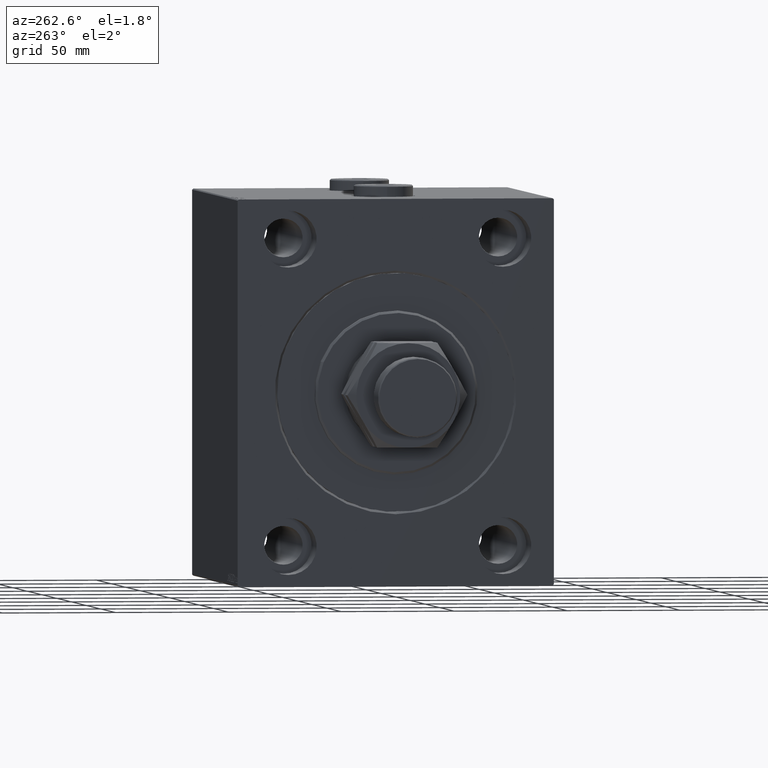
[diagram: clean part render]
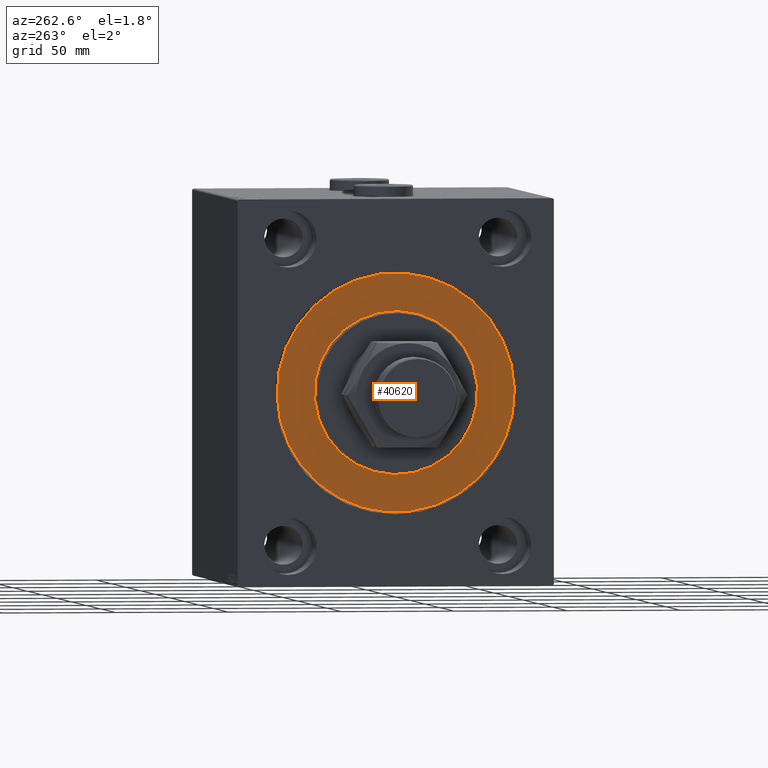
[diagram: same view with one face highlighted and labeled with its STEP entity id]
A machine part, auxiliary view. The second image highlights one B-rep face of the part: STEP entity #40620.
In plain terms, the highlighted planar face has unit normal (1, 0, -0).
Its self-contained STEP definition (entity closure, byte-faithful):
#1530 = VERTEX_POINT ( 'NONE', #10721 ) ;
#4086 = DIRECTION ( 'NONE',  ( -1.000000000000000000, 0.000000000000000000, 0.000000000000000000 ) ) ;
#4741 = CARTESIAN_POINT ( 'NONE',  ( 0.000000000000000000, 0.000000000000000000, 36.00000000000000000 ) ) ;
#5108 = VERTEX_POINT ( 'NONE', #4741 ) ;
#6008 = CARTESIAN_POINT ( 'NONE',  ( 0.000000000000000000, 0.000000000000000000, 0.000000000000000000 ) ) ;
#7418 = AXIS2_PLACEMENT_3D ( 'NONE', #19988, #43669, #40334 ) ;
#8239 = EDGE_CURVE ( 'NONE', #5108, #1530, #32536, .T. ) ;
#8477 = VERTEX_POINT ( 'NONE', #11121 ) ;
#8647 = FACE_BOUND ( 'NONE', #15633, .T. ) ;
#9049 = EDGE_LOOP ( 'NONE', ( #36616, #44683 ) ) ;
#9125 = DIRECTION ( 'NONE',  ( 0.000000000000000000, 0.000000000000000000, 1.000000000000000000 ) ) ;
#9254 = DIRECTION ( 'NONE',  ( -1.000000000000000000, 0.000000000000000000, 0.000000000000000000 ) ) ;
#9574 = VERTEX_POINT ( 'NONE', #33925 ) ;
#10721 = CARTESIAN_POINT ( 'NONE',  ( 0.000000000000000000, 4.408728476930470856E-15, -36.00000000000000000 ) ) ;
#11121 = CARTESIAN_POINT ( 'NONE',  ( 0.000000000000000000, 0.000000000000000000, -52.49999999999999289 ) ) ;
#11603 = ORIENTED_EDGE ( 'NONE', *, *, #43776, .F. ) ;
#12118 = DIRECTION ( 'NONE',  ( 0.000000000000000000, 0.000000000000000000, 1.000000000000000000 ) ) ;
#14803 = DIRECTION ( 'NONE',  ( 0.000000000000000000, 0.000000000000000000, 1.000000000000000000 ) ) ;
#15633 = EDGE_LOOP ( 'NONE', ( #28742, #11603 ) ) ;
#15694 = DIRECTION ( 'NONE',  ( 0.000000000000000000, 0.000000000000000000, -1.000000000000000000 ) ) ;
#18068 = AXIS2_PLACEMENT_3D ( 'NONE', #34018, #9254, #12118 ) ;
#18433 = EDGE_CURVE ( 'NONE', #9574, #8477, #45836, .T. ) ;
#19045 = CARTESIAN_POINT ( 'NONE',  ( 0.000000000000000000, 0.000000000000000000, 0.000000000000000000 ) ) ;
#19988 = CARTESIAN_POINT ( 'NONE',  ( 0.000000000000000000, 0.000000000000000000, 0.000000000000000000 ) ) ;
#22125 = AXIS2_PLACEMENT_3D ( 'NONE', #6008, #45068, #9125 ) ;
#23174 = FACE_OUTER_BOUND ( 'NONE', #9049, .T. ) ;
#23408 = CIRCLE ( 'NONE', #7418, 36.00000000000000000 ) ;
#25302 = AXIS2_PLACEMENT_3D ( 'NONE', #46945, #4086, #14803 ) ;
#27126 = DIRECTION ( 'NONE',  ( 1.000000000000000000, -0.000000000000000000, 0.000000000000000000 ) ) ;
#28742 = ORIENTED_EDGE ( 'NONE', *, *, #8239, .F. ) ;
#31244 = PLANE ( 'NONE',  #22125 ) ;
#32536 = CIRCLE ( 'NONE', #39376, 36.00000000000000000 ) ;
#33925 = CARTESIAN_POINT ( 'NONE',  ( 0.000000000000000000, 6.429395695523603167E-15, 52.49999999999999289 ) ) ;
#34018 = CARTESIAN_POINT ( 'NONE',  ( 0.000000000000000000, 0.000000000000000000, 0.000000000000000000 ) ) ;
#34798 = CIRCLE ( 'NONE', #18068, 52.49999999999999289 ) ;
#35741 = EDGE_CURVE ( 'NONE', #8477, #9574, #34798, .T. ) ;
#36616 = ORIENTED_EDGE ( 'NONE', *, *, #35741, .F. ) ;
#39376 = AXIS2_PLACEMENT_3D ( 'NONE', #19045, #27126, #15694 ) ;
#40334 = DIRECTION ( 'NONE',  ( 0.000000000000000000, 0.000000000000000000, -1.000000000000000000 ) ) ;
#40620 = ADVANCED_FACE ( 'NONE', ( #8647, #23174 ), #31244, .F. ) ;
#43669 = DIRECTION ( 'NONE',  ( 1.000000000000000000, -0.000000000000000000, 0.000000000000000000 ) ) ;
#43776 = EDGE_CURVE ( 'NONE', #1530, #5108, #23408, .T. ) ;
#44683 = ORIENTED_EDGE ( 'NONE', *, *, #18433, .F. ) ;
#45068 = DIRECTION ( 'NONE',  ( -1.000000000000000000, 0.000000000000000000, 0.000000000000000000 ) ) ;
#45836 = CIRCLE ( 'NONE', #25302, 52.49999999999999289 ) ;
#46945 = CARTESIAN_POINT ( 'NONE',  ( 0.000000000000000000, 0.000000000000000000, 0.000000000000000000 ) ) ;